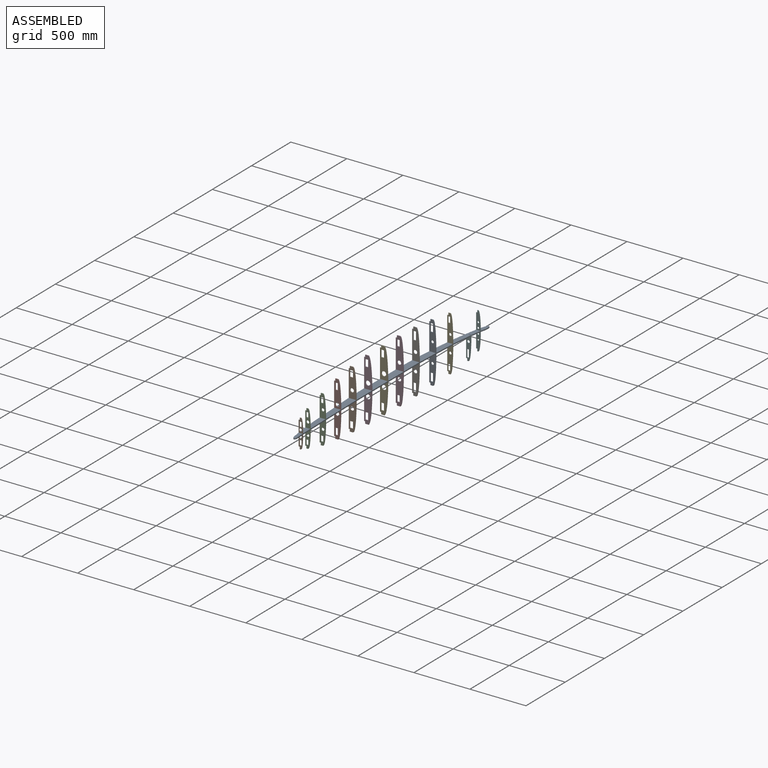
[diagram: assembled view]
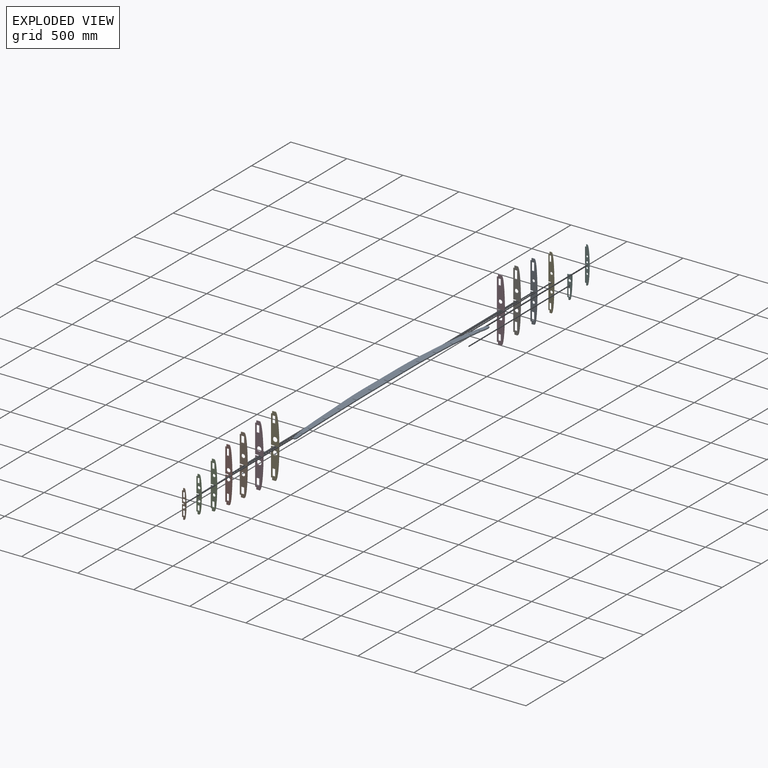
[diagram: exploded view]
GUIDED TOUR — MATED ASSEMBLY (Onshape document 58615a18bdf3891033371130, AutoMate assembly 58615a18bdf3891033371130_2133309ed96235d888a75b1d_295b67834f9d7edd9f971456_default)

This assembly has 14 components, labeled P0..P13 below (a component is one placed occurrence of a part; the same part can appear more than once), held together by 13 mates. A mate is a constraint between two components; its type names the relative motion it leaves free:
  FASTENED — locks the two components together rigidly (no relative motion).
Axis/direction vectors are unit vectors and 'through' points are millimeter coordinates, both in the assembly's world frame.

MATES
  1. FASTENED "Fastened 6": P2 <-> P8, direction (0.000, -1.000, 0.000) through (-668.85, -853.00, 244.33) mm
  2. FASTENED "Fastened 4": P10 <-> P8, direction (0.000, 1.000, 0.000) through (-660.33, -1047.00, 244.33) mm
  3. FASTENED "Fastened 2": P9 <-> P8, direction (0.000, -1.000, 0.000) through (-653.37, -1153.00, 254.33) mm
  4. FASTENED "Fastened 7": P7 <-> P8, direction (0.000, -1.000, 0.000) through (-674.63, -653.00, 244.33) mm
  5. FASTENED "Fastened 10": P1 <-> P8, direction (0.000, -1.000, 0.000) through (-681.65, -453.00, 254.33) mm
  6. FASTENED "Fastened 11": P3 <-> P8, direction (0.000, 1.000, 0.000) through (-682.98, -247.00, 254.33) mm
  7. FASTENED "Fastened 9": P6 <-> P8, direction (0.000, 1.000, 0.000) through (-676.89, 353.00, 244.33) mm
  8. FASTENED "Fastened 13": P4 <-> P8, direction (0.000, 1.000, 0.000) through (-681.33, -47.00, 244.33) mm
  9. FASTENED "Fastened 3": P13 <-> P8, direction (0.000, 1.000, 0.000) through (-625.93, 953.00, 244.33) mm
  10. FASTENED "Fastened 5": P12 <-> P8, direction (0.000, 1.000, 0.000) through (-651.31, 753.00, 244.33) mm
  11. FASTENED "Fastened 1": P5 <-> P8, direction (0.000, 1.000, 0.000) through (-609.81, 1053.00, 254.33) mm
  12. FASTENED "Fastened 8": P0 <-> P8, direction (0.000, -1.000, 0.000) through (-666.50, 547.00, 254.33) mm
  13. FASTENED "Fastened 12": P11 <-> P8, direction (0.000, -1.000, 0.000) through (-680.86, 147.00, 254.33) mm

ASSEMBLY ORDER
  1. P8 — the base component [order verified]
  2. P4 [order verified]
  3. P11 [order verified]
  4. P3 [order verified]
  5. P6 [order verified]
  6. P1 [order verified]
  7. P0 [order verified]
  8. P7 [order verified]
  9. P12 [order verified]
  10. P2 [order verified]
  11. P13 [order verified]
  12. P10 [order verified]
  13. P5 [order verified]
  14. P9 [order verified]
(P1, P12 verified with a relaxed clearance tolerance: the source model stores slight part interference there.)
Order-tag legend:
  [order verified] — this step's position reverses a verified removal order: the component was checked to insert without passing through the ones already placed.

Of the 14 components, 4 carry the full construction recipe — the FeatureScript program that regenerates the part's solid from scratch; the rest are supplied as boundary geometry only.
Because this assembly has more than 12 components, the tour below covers the 12 most significant ones individually (every recipe-attached component first, then the largest by part volume), in assembly order; the remaining 2 are summarized together in a grouped section at the end.
Each toured component is shown spotlighted twice — in the assembled view, then in the exploded view, where a leader line traces a displaced component back to its assembled socket (saturated green if recipe-attached, orange if geometry-only; every other component desaturated gray) — followed by its recipe or geometry summary and the mates that hold it.
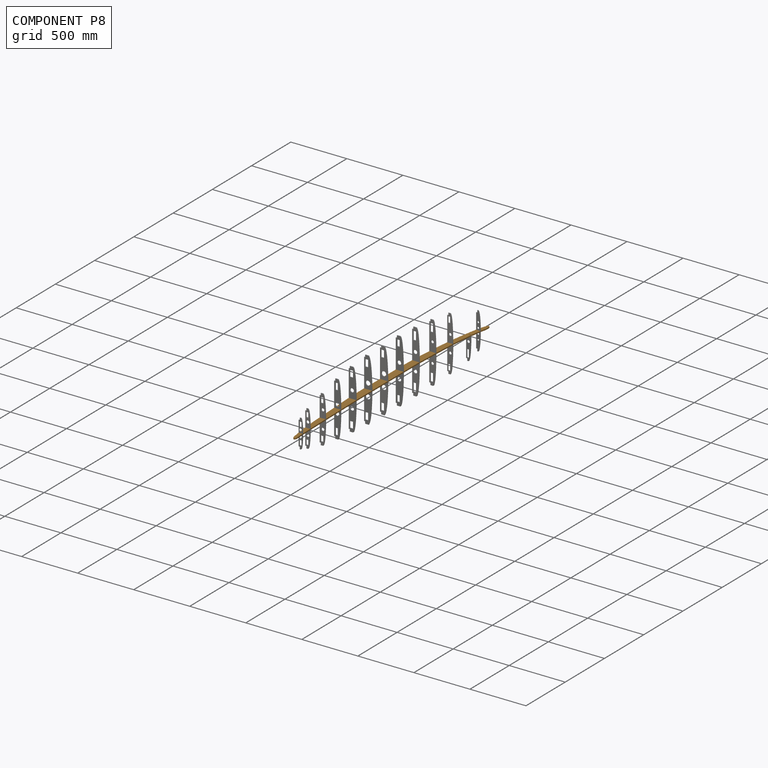
[diagram: component P8 — assembled]
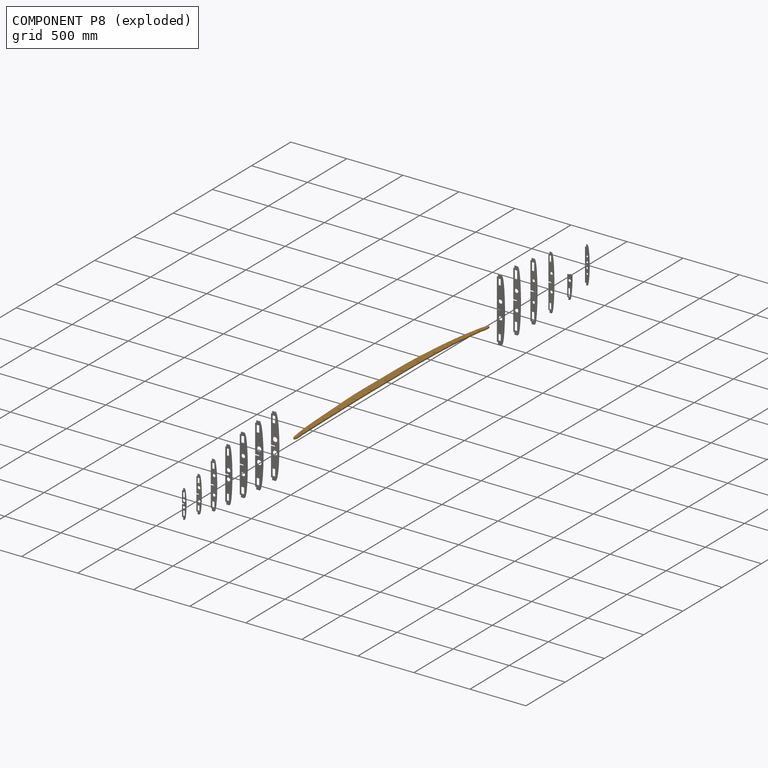
[diagram: component P8 — exploded]
COMPONENT P8 — geometry summary (no construction recipe available for this part):
  bounding box: 2409.0 x 142.4 x 10.0 mm
  B-rep topology: 1 solid, 58 faces, 336 edges
  volume: 1339200 mm^3 (39% of its bounding box)
  symmetry: mirror-symmetric across its z mid-plane
Held by: FASTENED mate "Fastened 6" to P2; FASTENED mate "Fastened 4" to P10; FASTENED mate "Fastened 2" to P9; FASTENED mate "Fastened 7" to P7; FASTENED mate "Fastened 10" to P1; FASTENED mate "Fastened 11" to P3; FASTENED mate "Fastened 9" to P6; FASTENED mate "Fastened 13" to P4; FASTENED mate "Fastened 3" to P13; FASTENED mate "Fastened 5" to P12; FASTENED mate "Fastened 1" to P5; FASTENED mate "Fastened 8" to P0; FASTENED mate "Fastened 12" to P11.
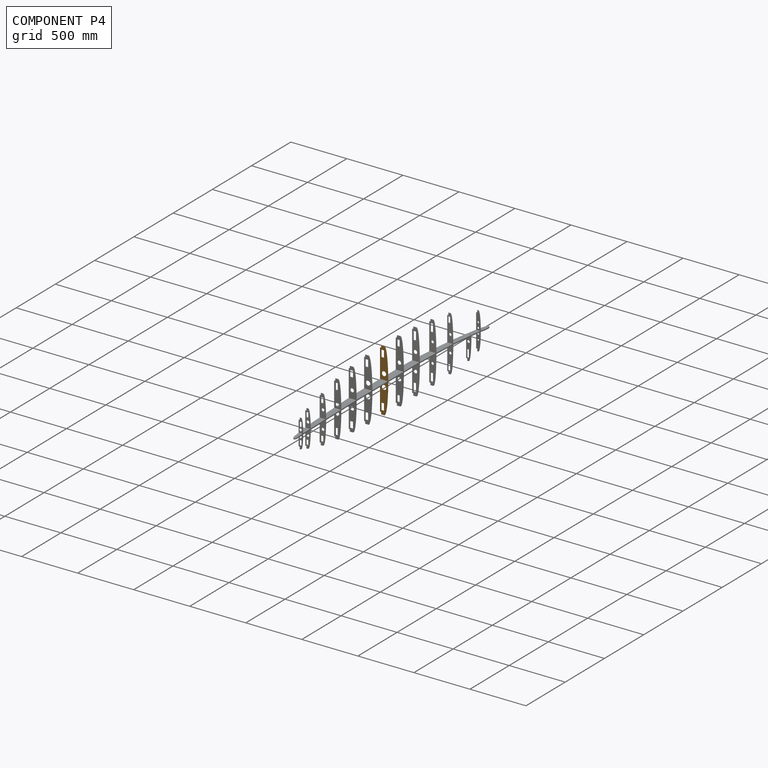
[diagram: component P4 — assembled]
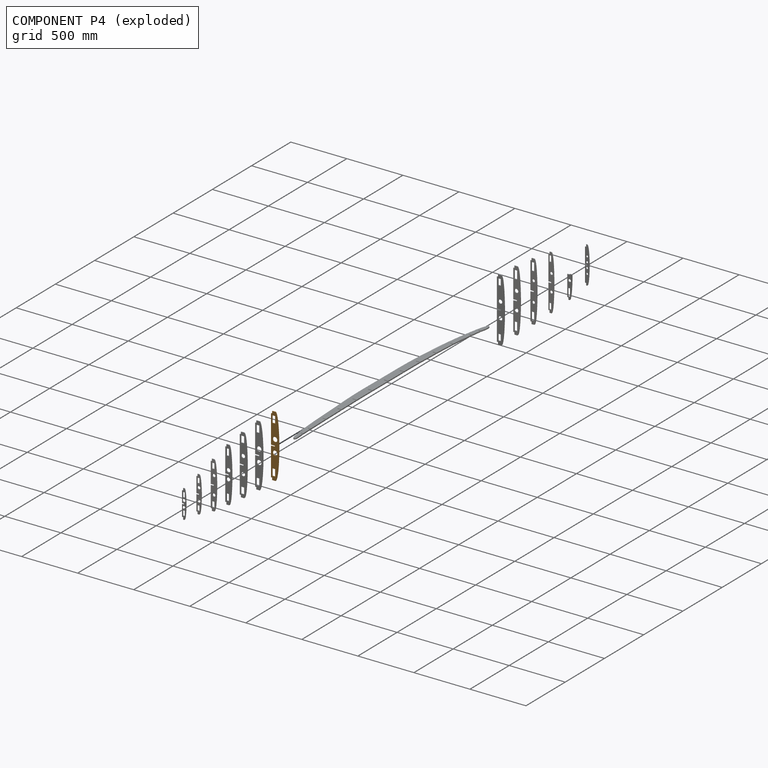
[diagram: component P4 — exploded]
COMPONENT P4 — geometry summary (no construction recipe available for this part):
  bounding box: 556.0 x 70.0 x 6.0 mm
  B-rep topology: 1 solid, 25 faces, 138 edges
  volume: 170056 mm^3 (73% of its bounding box)
  symmetry: 2-fold rotationally symmetric about the x axis; mirror-symmetric across its y mid-plane, z mid-plane
Held by: FASTENED mate "Fastened 13" to P8.
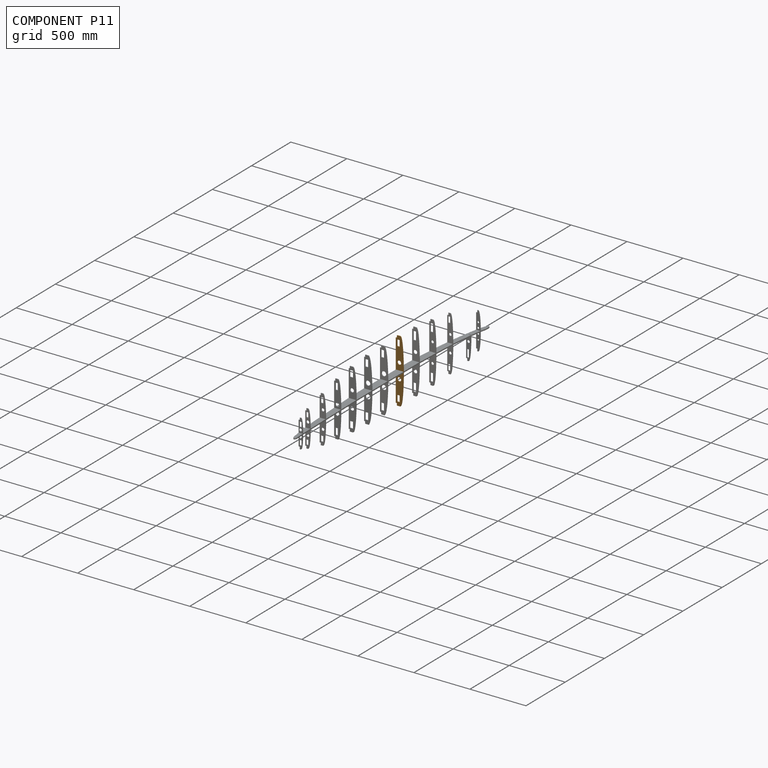
[diagram: component P11 — assembled]
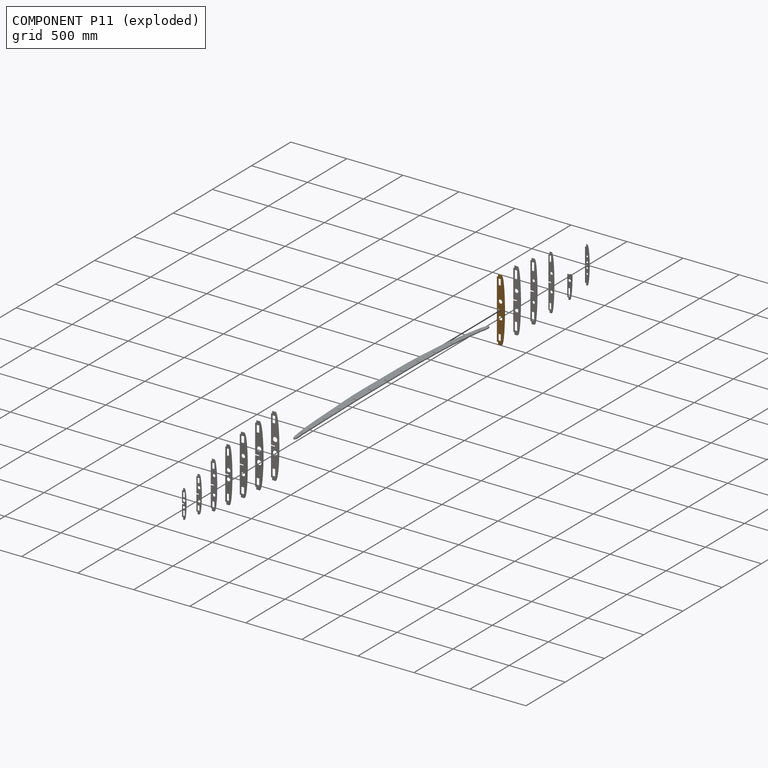
[diagram: component P11 — exploded]
COMPONENT P11 — geometry summary (no construction recipe available for this part):
  bounding box: 566.0 x 68.0 x 6.0 mm
  B-rep topology: 1 solid, 25 faces, 138 edges
  volume: 179502 mm^3 (78% of its bounding box)
  symmetry: 2-fold rotationally symmetric about the x axis; mirror-symmetric across its y mid-plane, z mid-plane
Held by: FASTENED mate "Fastened 12" to P8.
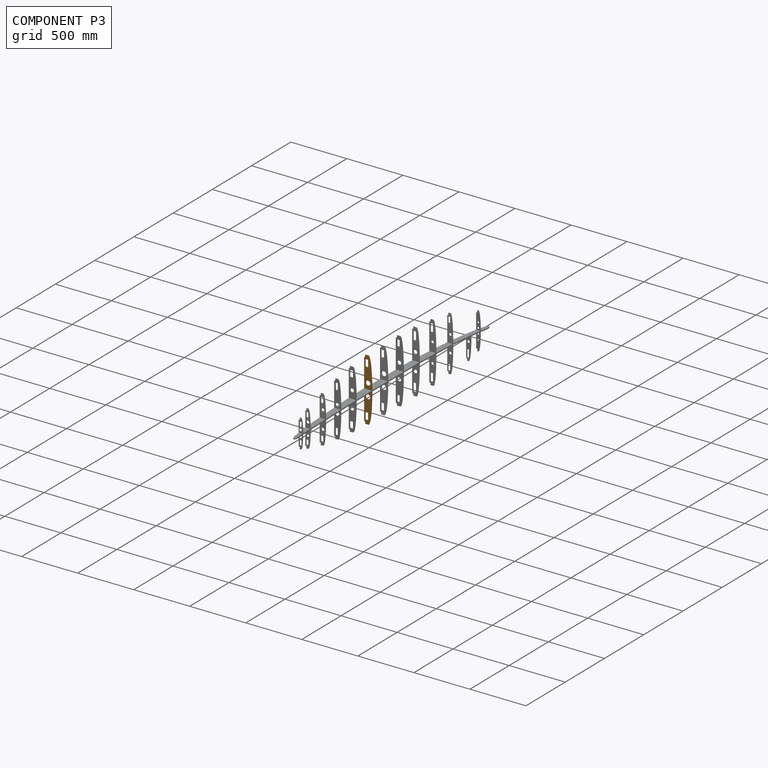
[diagram: component P3 — assembled]
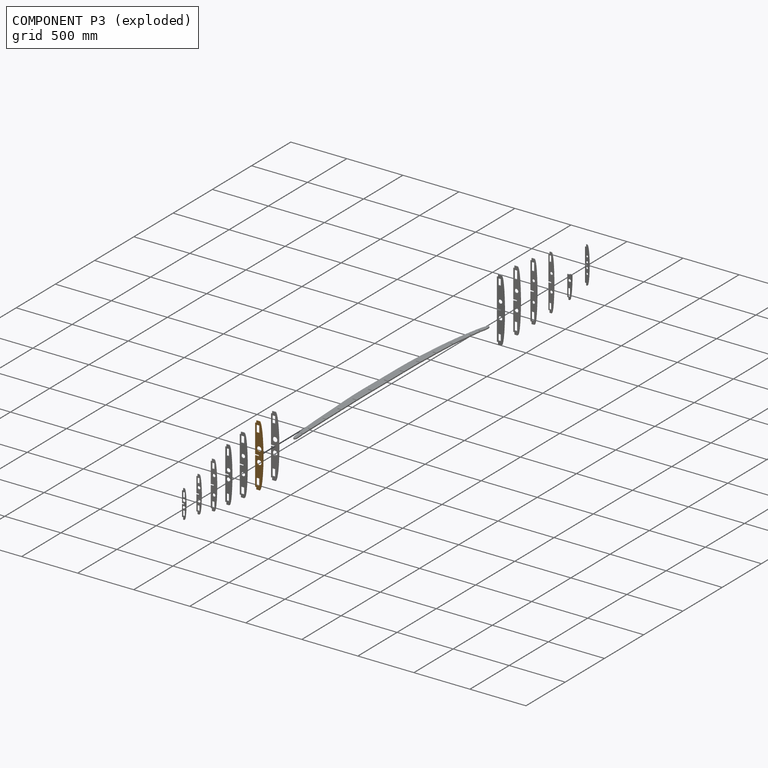
[diagram: component P3 — exploded]
COMPONENT P3 — geometry summary (no construction recipe available for this part):
  bounding box: 556.0 x 70.0 x 6.0 mm
  B-rep topology: 1 solid, 25 faces, 138 edges
  volume: 170056 mm^3 (73% of its bounding box)
  symmetry: 2-fold rotationally symmetric about the x axis; mirror-symmetric across its y mid-plane, z mid-plane
Held by: FASTENED mate "Fastened 11" to P8.
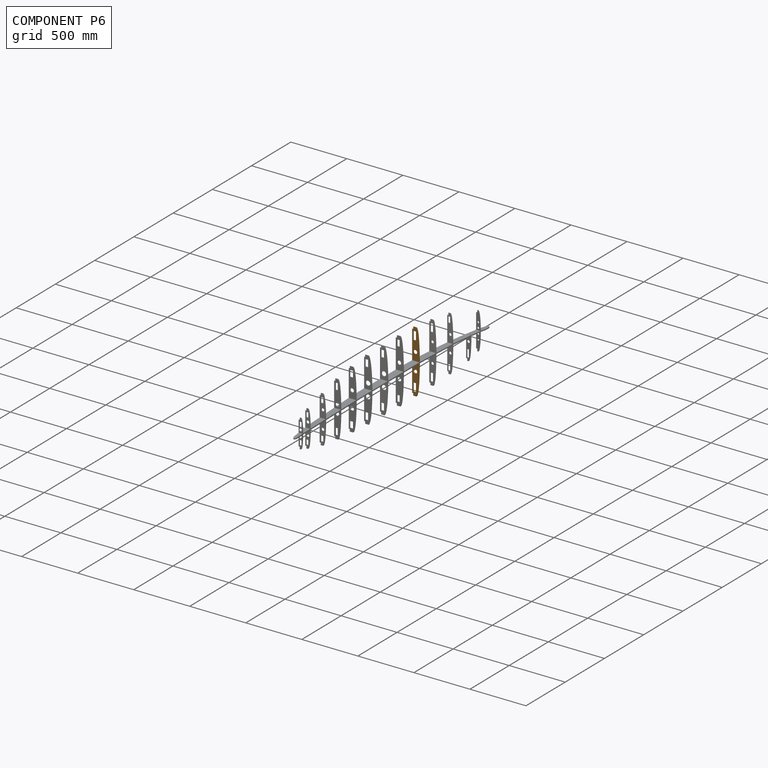
[diagram: component P6 — assembled]
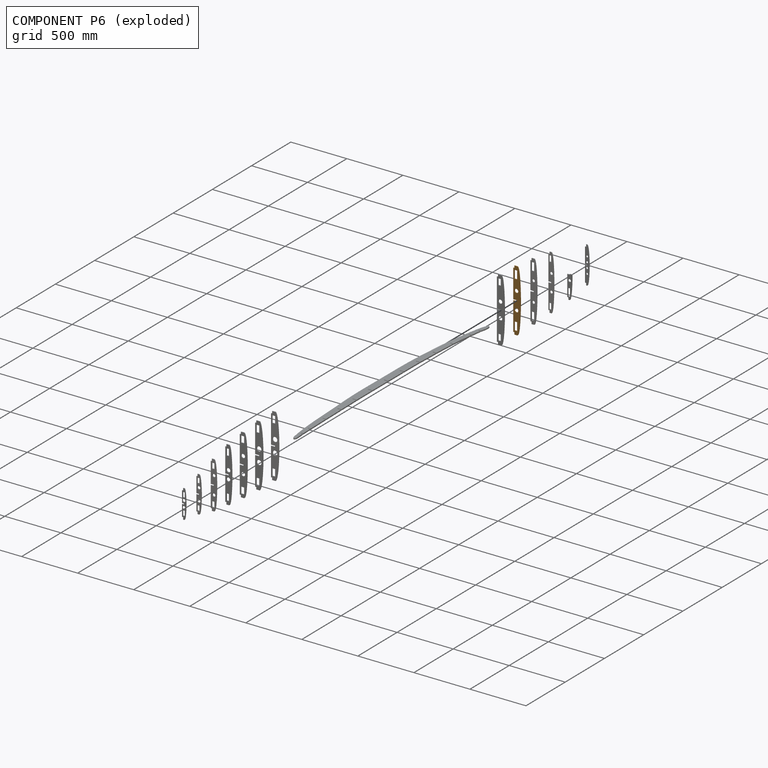
[diagram: component P6 — exploded]
COMPONENT P6 — geometry summary (no construction recipe available for this part):
  bounding box: 556.0 x 65.0 x 6.0 mm
  B-rep topology: 1 solid, 25 faces, 138 edges
  volume: 160410 mm^3 (74% of its bounding box)
  symmetry: 2-fold rotationally symmetric about the x axis; mirror-symmetric across its y mid-plane, z mid-plane
Held by: FASTENED mate "Fastened 9" to P8.
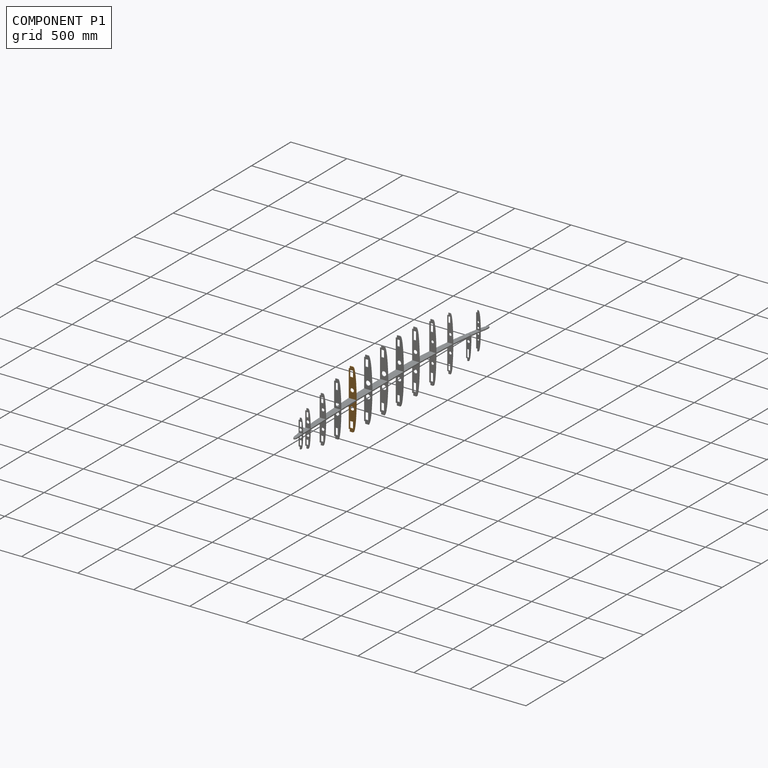
[diagram: component P1 — assembled]
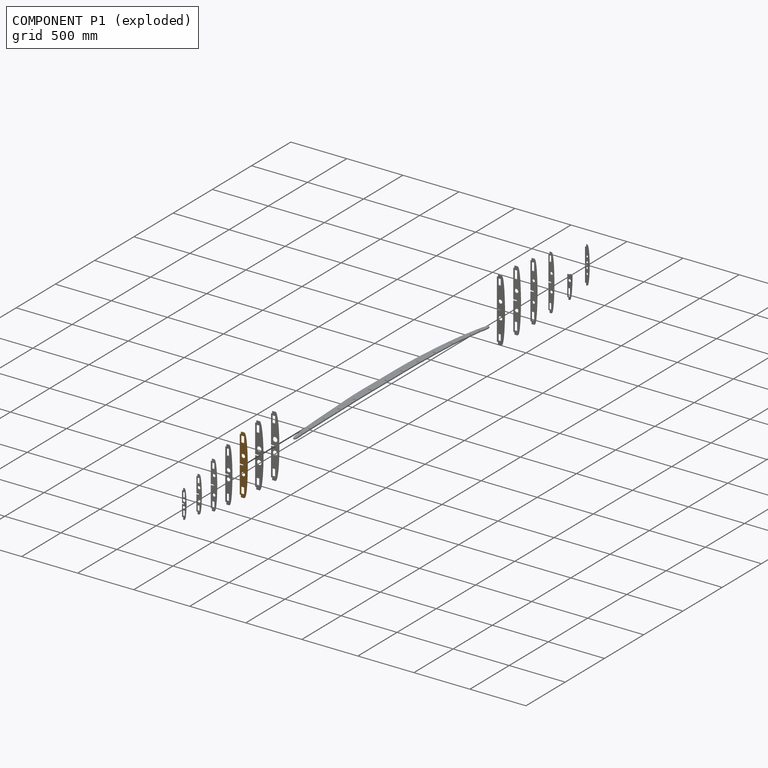
[diagram: component P1 — exploded]
COMPONENT P1 — geometry summary (no construction recipe available for this part):
  bounding box: 528.0 x 67.0 x 6.0 mm
  B-rep topology: 1 solid, 25 faces, 138 edges
  volume: 158612 mm^3 (75% of its bounding box)
  symmetry: 2-fold rotationally symmetric about the x axis; mirror-symmetric across its y mid-plane, z mid-plane
Held by: FASTENED mate "Fastened 10" to P8.
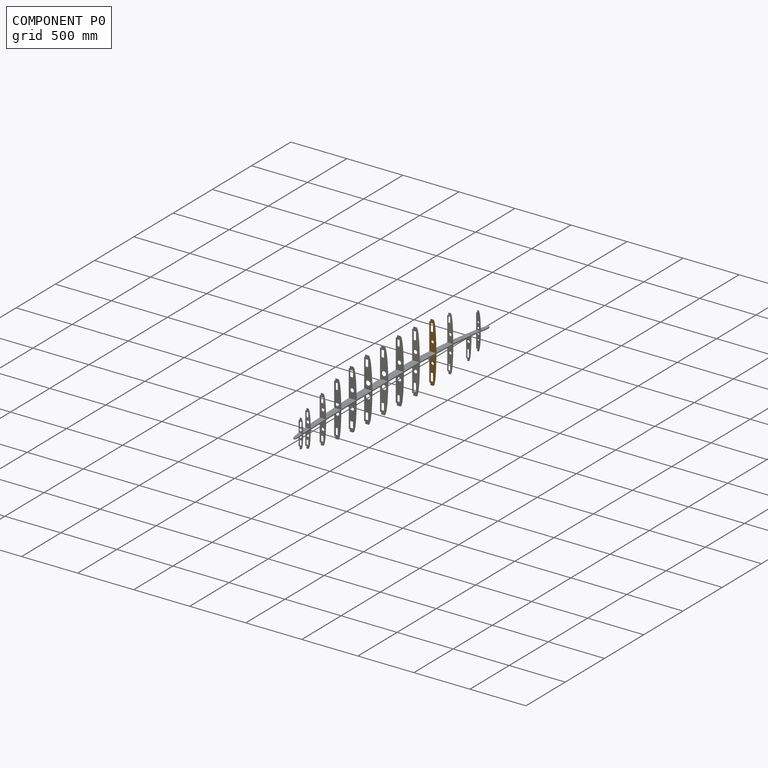
[diagram: component P0 — assembled]
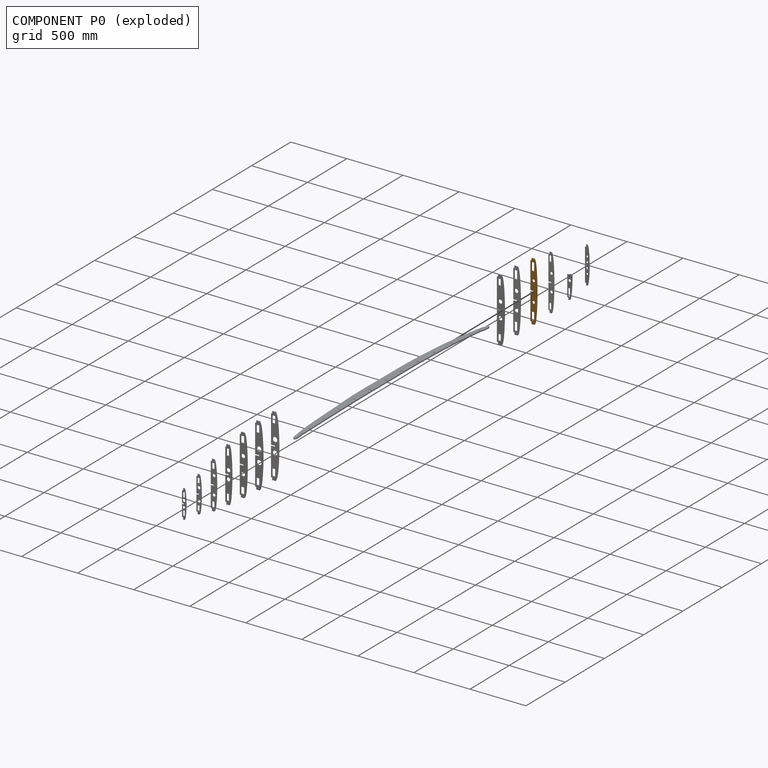
[diagram: component P0 — exploded]
COMPONENT P0 — geometry summary (no construction recipe available for this part):
  bounding box: 532.0 x 59.0 x 6.0 mm
  B-rep topology: 1 solid, 25 faces, 138 edges
  volume: 142225 mm^3 (76% of its bounding box)
  symmetry: 2-fold rotationally symmetric about the x axis; mirror-symmetric across its y mid-plane, z mid-plane
Held by: FASTENED mate "Fastened 8" to P8.
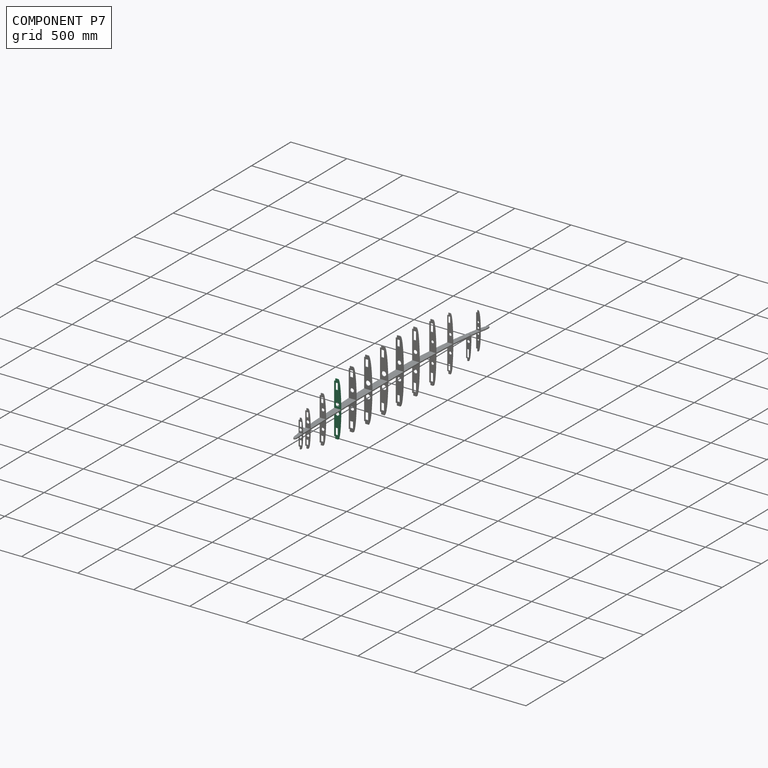
[diagram: component P7 — assembled]
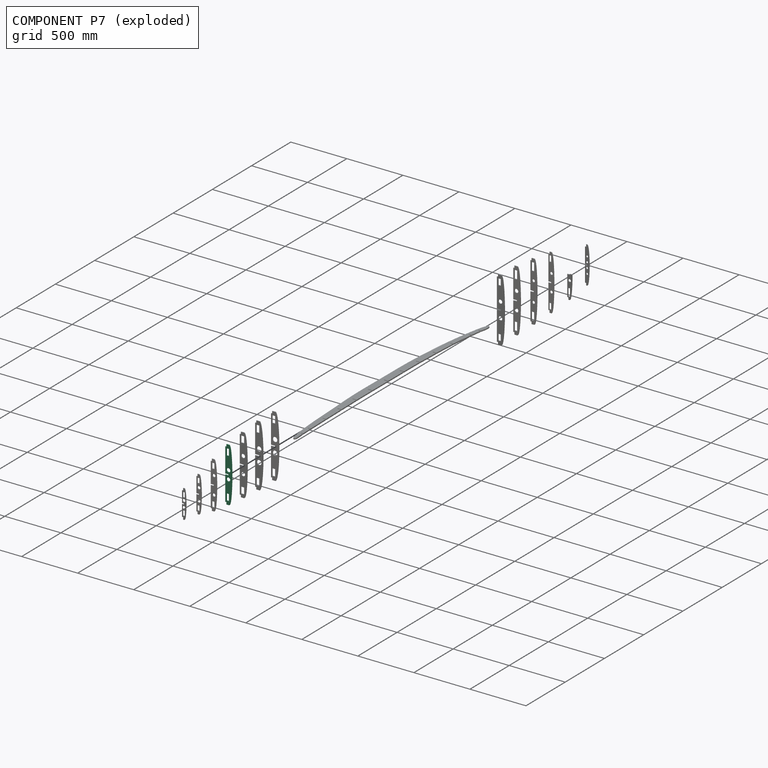
[diagram: component P7 — exploded]
COMPONENT P7 — recipe-attached (CADFS 00405793, mesh-verified: the recipe's output STEP matches this component's geometry to below the mesh-comparison resolution (tessellation chordal tolerance ~0.734 mm)).
Held by: FASTENED mate "Fastened 7" to P8.
Construction recipe (FeatureScript — the CAD program that rebuilds this solid; sketch coordinates are in the units given by the * unit suffixes, e.g. mm):

FeatureScript 1511;
import(path : "onshape/std/geometry.fs", version : "1511.0");
import(path : "onshape/std/common.fs", version : "1511.0");
const mm = millimeter;
const VERTEX = EntityType.VERTEX;
const EDGE = EntityType.EDGE;
const FACE = EntityType.FACE;
const BODY = EntityType.BODY;
function v(x, y){return vector(x, y);}
function OD(order){return orderDisambiguation(order);}
function OSD(set){return originalSetDisambiguation(set);}
function TD(topology){return topologyDisambiguation(topology);}
function TDD(query){return trueDependencyDisambiguation(query);}
function sQuery(a, b, c) {return sketchEntityQuery(a, b, c);}

annotation { "Feature Type Name" : "Feature", "Feature Type Description" : "" }
export const myFeature = defineFeature(function(context is Context, id is Id, definition is map)
    precondition{}
    {
        {
            var Q0;
            Q0=qCreatedBy(makeId("Front.planeOp"),FACE);
            var sketch = newSketch(context, id + "F0", { "sketchPlane" : qUnion([Q0])});
            skLineSegment(sketch, "E0.top", {"start": v(203.9, 162.56) * mm, "end": v(154.46, 162.56) * mm});
            skLineSegment(sketch, "E1", {"start": v(204.46, -80.44) * mm, "end": v(144.46, -80.44) * mm});
            skLineSegment(sketch, "E2", {"start": v(203.9, 162.56) * mm, "end": v(203.9, -81.33) * mm});
            skLineSegment(sketch, "E3.bottom", {"start": v(176.66, 130.58) * mm, "end": v(155.5, 130.58) * mm});
            skLineSegment(sketch, "E3.top", {"start": v(176.66, 72.1) * mm, "end": v(155.5, 72.1) * mm});
            skLineSegment(sketch, "E3.left", {"start": v(176.66, 130.58) * mm, "end": v(176.66, 72.1) * mm});
            skLineSegment(sketch, "E3.right", {"start": v(155.5, 130.58) * mm, "end": v(155.5, 72.1) * mm});
            skCircle(sketch, "E4", {"center": v(172.37, -42.52) * mm, "radius": 16.93 * mm});
            skLineSegment(sketch, "E5", {"start": v(203.9, -80.44) * mm, "end": v(204.46, -80.44) * mm});
            skFitSpline(sketch, "E6", {"points": [v(178.3, 162.56) * mm, v(203.9, -80.44) * mm], "startDerivative": vector(76.9, -21.6) * mm, "endDerivative": vector(-0.1, 2.67) * mm});
            skLineSegment(sketch, "E7.MirrorCS", {"start": v(176.66, -291.45) * mm, "end": v(176.66, -232.97) * mm});
            skCircle(sketch, "E8.MirrorC", {"center": v(172.37, -118.36) * mm, "radius": 16.93 * mm});
            skLineSegment(sketch, "E9.MirrorCS", {"start": v(176.66, -291.45) * mm, "end": v(155.5, -291.45) * mm});
            skLineSegment(sketch, "E10.MirrorCS", {"start": v(155.5, -291.45) * mm, "end": v(155.5, -232.97) * mm});
            skLineSegment(sketch, "E11.MirrorCS", {"start": v(176.66, -232.97) * mm, "end": v(155.5, -232.97) * mm});
            skLineSegment(sketch, "E12.MirrorCS", {"start": v(203.9, -323.44) * mm, "end": v(203.9, -79.55) * mm});
            skFitSpline(sketch, "E13.MirrorCS", {"points": [v(178.3, -323.44) * mm, v(203.9, -80.44) * mm], "startDerivative": vector(76.9, 21.6) * mm, "endDerivative": vector(-0.1, -2.67) * mm});
            skLineSegment(sketch, "E14.MirrorCS", {"start": v(203.9, -323.44) * mm, "end": v(154.46, -323.44) * mm});
            skLineSegment(sketch, "E15", {"start": v(174.46, -80.44) * mm, "end": v(174.46, -75.44) * mm});
            skLineSegment(sketch, "E16", {"start": v(174.46, -80.44) * mm, "end": v(174.46, -85.44) * mm});
            skLineSegment(sketch, "E17", {"start": v(174.46, -75.44) * mm, "end": v(144.46, -75.44) * mm});
            skLineSegment(sketch, "E18", {"start": v(174.46, -85.44) * mm, "end": v(144.46, -85.44) * mm});
            skLineSegment(sketch, "E19", {"start": v(154.46, 162.56) * mm, "end": v(154.46, 142.56) * mm});
            skLineSegment(sketch, "E20", {"start": v(154.46, 142.56) * mm, "end": v(144.46, 142.56) * mm});
            skLineSegment(sketch, "E21", {"start": v(154.46, 162.56) * mm, "end": v(178.46, 162.56) * mm});
            skLineSegment(sketch, "E22", {"start": v(144.46, 142.56) * mm, "end": v(144.46, -80.44) * mm});
            skLineSegment(sketch, "E23.MirrorCS", {"start": v(154.46, -323.44) * mm, "end": v(154.46, -303.44) * mm});
            skLineSegment(sketch, "E24.MirrorCS", {"start": v(154.46, -303.44) * mm, "end": v(144.46, -303.44) * mm});
            skLineSegment(sketch, "E25", {"start": v(144.46, -303.44) * mm, "end": v(144.46, -80.44) * mm});
            skLineSegment(sketch, "E26", {"start": v(154.46, -323.44) * mm, "end": v(178.46, -323.44) * mm});
            skSolve(sketch);
        }
        {
            var Q0;
            Q0=makeQuery(id+"F0.imprint","IMPRINT",FACE,{"disambiguationData":[TD([[makeQuery(id+"F0.imprint","IMPRINT",EDGE,{"derivedFrom":sQuery(id+"F0.wireOp",EDGE,"E7.MirrorCS")}),-1.0]])]});
            var Q1;
            Q1=makeQuery(id+"F0.imprint","IMPRINT",FACE,{"disambiguationData":[TD([[makeQuery(id+"F0.imprint","IMPRINT",EDGE,{"derivedFrom":sQuery(id+"F0.wireOp",EDGE,"E3.bottom")}),-1.0]])]});
            extrude(context, id + "F1", {"entities" : qUnion([Q0, Q1]), "depth" : 6 * mm});
        }
    });
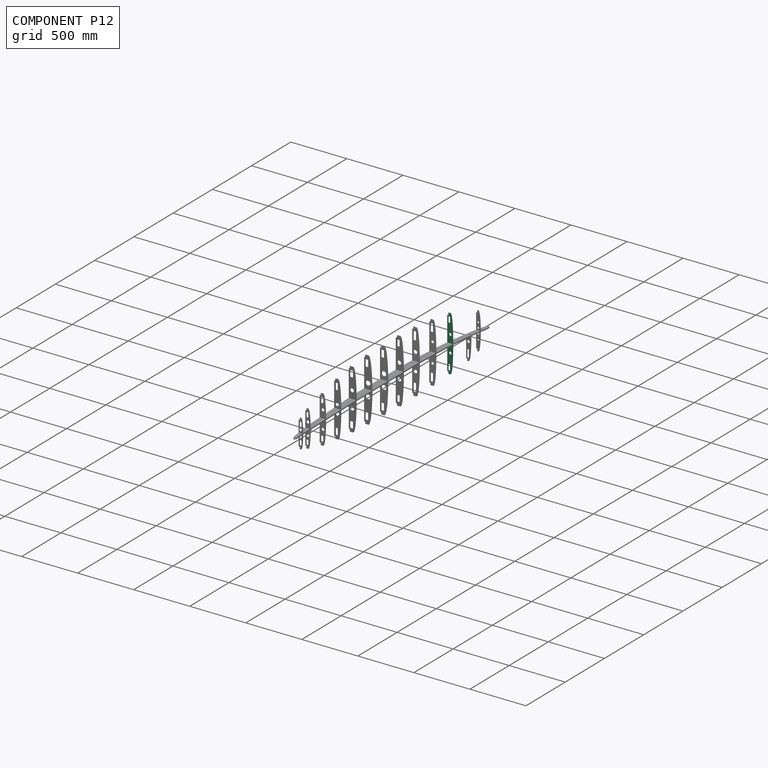
[diagram: component P12 — assembled]
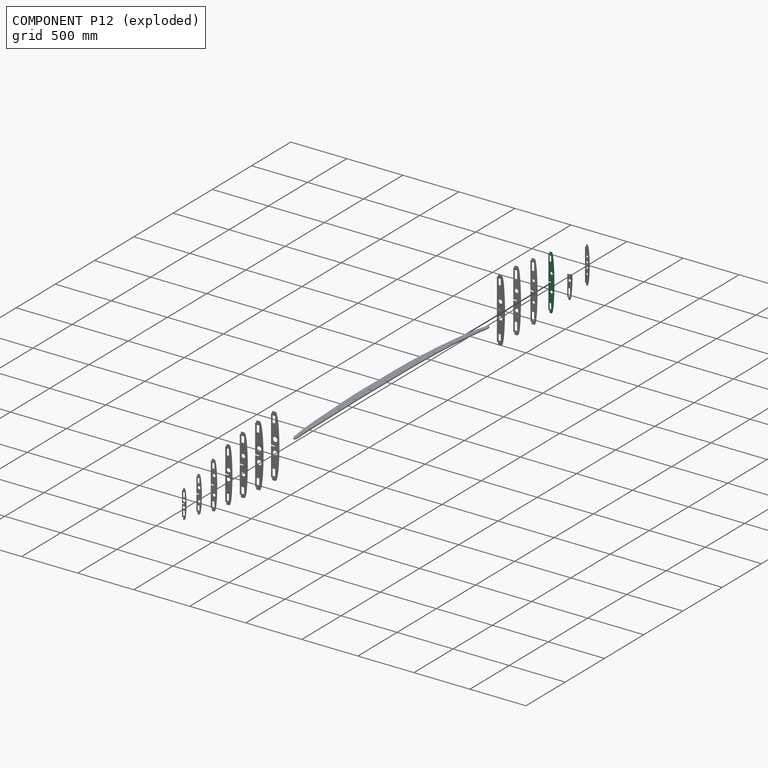
[diagram: component P12 — exploded]
COMPONENT P12 — recipe-attached (CADFS 00405786, mesh-verified: the recipe's output STEP matches this component's geometry to below the mesh-comparison resolution (tessellation chordal tolerance ~0.742 mm)).
Held by: FASTENED mate "Fastened 5" to P8.
Construction recipe (FeatureScript — the CAD program that rebuilds this solid; sketch coordinates are in the units given by the * unit suffixes, e.g. mm):

FeatureScript 1511;
import(path : "onshape/std/geometry.fs", version : "1511.0");
import(path : "onshape/std/common.fs", version : "1511.0");
const mm = millimeter;
const VERTEX = EntityType.VERTEX;
const EDGE = EntityType.EDGE;
const FACE = EntityType.FACE;
const BODY = EntityType.BODY;
function v(x, y){return vector(x, y);}
function OD(order){return orderDisambiguation(order);}
function OSD(set){return originalSetDisambiguation(set);}
function TD(topology){return topologyDisambiguation(topology);}
function TDD(query){return trueDependencyDisambiguation(query);}
function sQuery(a, b, c) {return sketchEntityQuery(a, b, c);}

annotation { "Feature Type Name" : "Feature", "Feature Type Description" : "" }
export const myFeature = defineFeature(function(context is Context, id is Id, definition is map)
    precondition{}
    {
        {
            var Q0;
            Q0=qCreatedBy(makeId("Front.planeOp"),FACE);
            var sketch = newSketch(context, id + "F0", { "sketchPlane" : qUnion([Q0])});
            skFitSpline(sketch, "E0", {"points": [v(192.75, 203.85) * mm, v(215.25, -42.15) * mm], "startDerivative": vector(67.6, -22.2) * mm, "endDerivative": vector(-0.1, -5.55) * mm});
            skLineSegment(sketch, "E1", {"start": v(215.25, -42.15) * mm, "end": v(165.25, -42.15) * mm});
            skLineSegment(sketch, "E2", {"start": v(215.28, 203.85) * mm, "end": v(215.28, -40.3) * mm});
            skLineSegment(sketch, "E3.bottom", {"start": v(190.73, 175.44) * mm, "end": v(172.16, 175.44) * mm});
            skLineSegment(sketch, "E3.top", {"start": v(190.73, 123.6) * mm, "end": v(172.16, 123.6) * mm});
            skLineSegment(sketch, "E3.left", {"start": v(190.73, 175.44) * mm, "end": v(190.73, 123.6) * mm});
            skLineSegment(sketch, "E3.right", {"start": v(172.16, 175.44) * mm, "end": v(172.16, 123.6) * mm});
            skCircle(sketch, "E4", {"center": v(191.53, 32.8) * mm, "radius": 11.87 * mm});
            skLineSegment(sketch, "E5.MirrorCS", {"start": v(190.73, -207.9) * mm, "end": v(172.16, -207.9) * mm});
            skLineSegment(sketch, "E6.MirrorCS", {"start": v(172.16, -259.74) * mm, "end": v(172.16, -207.9) * mm});
            skFitSpline(sketch, "E7.MirrorCS", {"points": [v(192.75, -288.15) * mm, v(215.25, -42.15) * mm], "startDerivative": vector(67.6, 22.2) * mm, "endDerivative": vector(-0.1, 5.55) * mm});
            skLineSegment(sketch, "E8.MirrorCS", {"start": v(215.28, -288.15) * mm, "end": v(175.25, -288.15) * mm});
            skLineSegment(sketch, "E9.MirrorCS", {"start": v(215.28, -288.15) * mm, "end": v(215.28, -44) * mm});
            skLineSegment(sketch, "E10.MirrorCS", {"start": v(190.73, -259.74) * mm, "end": v(172.16, -259.74) * mm});
            skLineSegment(sketch, "E11.MirrorCS", {"start": v(190.73, -259.74) * mm, "end": v(190.73, -207.9) * mm});
            skCircle(sketch, "E12.MirrorC", {"center": v(191.53, -117.1) * mm, "radius": 11.87 * mm});
            skLineSegment(sketch, "E13", {"start": v(190.25, -42.15) * mm, "end": v(190.25, -47.15) * mm});
            skLineSegment(sketch, "E14", {"start": v(190.25, -42.15) * mm, "end": v(190.25, -37.15) * mm});
            skLineSegment(sketch, "E15", {"start": v(190.25, -37.15) * mm, "end": v(165.25, -37.15) * mm});
            skLineSegment(sketch, "E16", {"start": v(190.25, -47.15) * mm, "end": v(165.25, -47.15) * mm});
            skLineSegment(sketch, "E17", {"start": v(175.25, 203.85) * mm, "end": v(175.25, 183.85) * mm});
            skLineSegment(sketch, "E18", {"start": v(175.25, 183.85) * mm, "end": v(165.25, 183.85) * mm});
            skLineSegment(sketch, "E19", {"start": v(175.25, 203.85) * mm, "end": v(192.75, 203.85) * mm});
            skLineSegment(sketch, "E20", {"start": v(165.25, 183.85) * mm, "end": v(165.25, -42.15) * mm});
            skLineSegment(sketch, "E21", {"start": v(192.75, 203.85) * mm, "end": v(215.28, 203.85) * mm});
            skLineSegment(sketch, "E22.MirrorCS", {"start": v(175.25, -288.15) * mm, "end": v(175.25, -268.15) * mm});
            skLineSegment(sketch, "E23.MirrorCS", {"start": v(175.25, -268.15) * mm, "end": v(165.25, -268.15) * mm});
            skLineSegment(sketch, "E24", {"start": v(175.25, -288.15) * mm, "end": v(175.25, -288.15) * mm});
            skLineSegment(sketch, "E25", {"start": v(165.25, -268.15) * mm, "end": v(165.25, -42.15) * mm});
            skLineSegment(sketch, "E26", {"start": v(165.25, -268.15) * mm, "end": v(165.25, -268.15) * mm});
            skSolve(sketch);
        }
        {
            var Q0;
            Q0=makeQuery(id+"F0.imprint","IMPRINT",FACE,{"disambiguationData":[TD([[makeQuery(id+"F0.imprint","IMPRINT",EDGE,{"derivedFrom":sQuery(id+"F0.wireOp",EDGE,"7156f876-30db-4834-be3f-2c649fc2f715")}),-1.0]])]});
            var Q1;
            Q1=makeQuery(id+"F0.imprint","IMPRINT",FACE,{"disambiguationData":[TD([[makeQuery(id+"F0.imprint","IMPRINT",EDGE,{"derivedFrom":sQuery(id+"F0.wireOp",EDGE,"E5.MirrorCS")}),-1.0]])]});
            var Q2;
            {var subQ0=sQuery(id+"F0.wireOp",EDGE,"E0");Q2=makeQuery(id+"F0.imprint","IMPRINT",FACE,{"disambiguationData":[TD([[makeQuery(id+"F0.imprint","IMPRINT",EDGE,{"derivedFrom":subQ0}),-1.0]])]});}
            extrude(context, id + "F1", {"entities" : qUnion([Q0, Q1, Q2]), "depth" : 6 * mm});
        }
    });
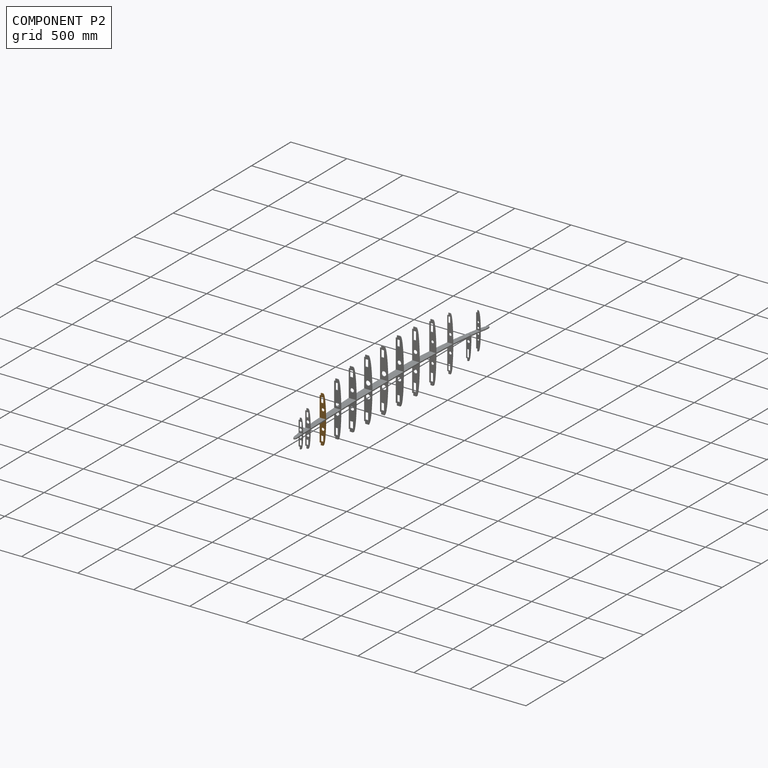
[diagram: component P2 — assembled]
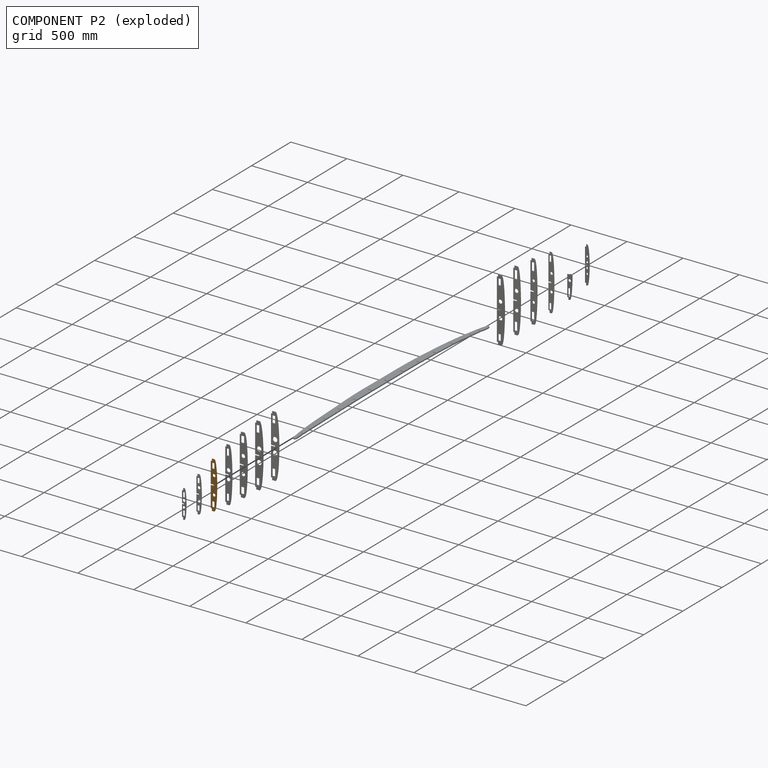
[diagram: component P2 — exploded]
COMPONENT P2 — geometry summary (no construction recipe available for this part):
  bounding box: 420.0 x 54.1 x 6.0 mm
  B-rep topology: 1 solid, 26 faces, 144 edges
  volume: 100038 mm^3 (73% of its bounding box)
  symmetry: 2-fold rotationally symmetric about the x axis; mirror-symmetric across its y mid-plane, z mid-plane
Held by: FASTENED mate "Fastened 6" to P8.
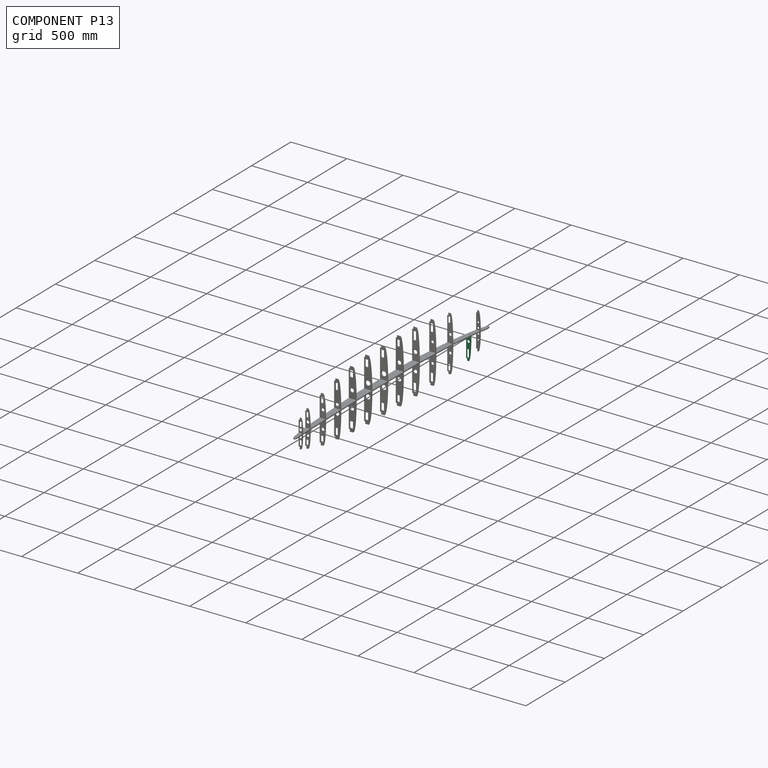
[diagram: component P13 — assembled]
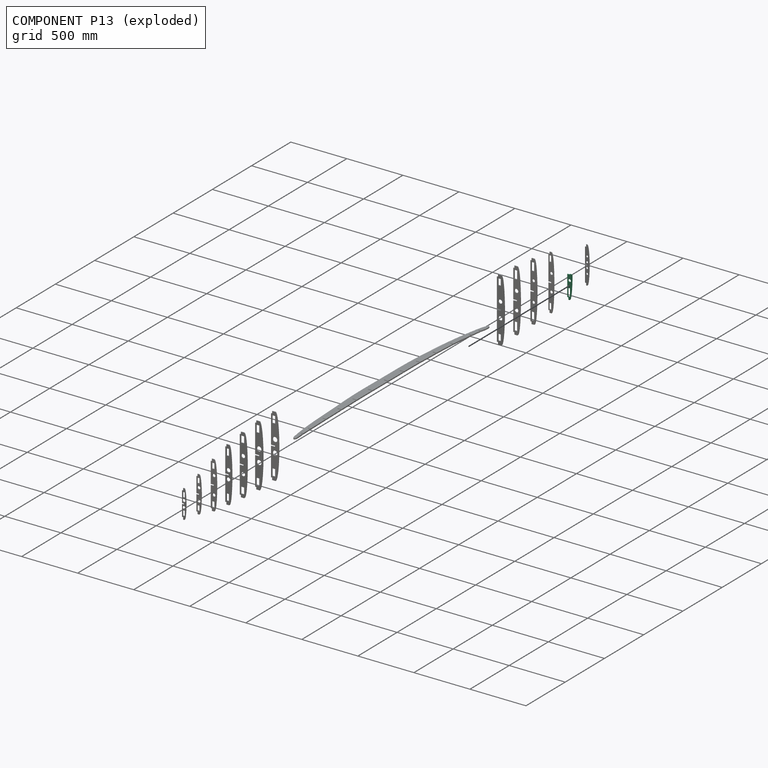
[diagram: component P13 — exploded]
COMPONENT P13 — recipe-attached (CADFS 00405785, mesh-verified: the recipe's output STEP matches this component's geometry to below the mesh-comparison resolution (tessellation chordal tolerance ~0.322 mm)).
Held by: FASTENED mate "Fastened 3" to P8.
Construction recipe (FeatureScript — the CAD program that rebuilds this solid; sketch coordinates are in the units given by the * unit suffixes, e.g. mm):

FeatureScript 1511;
import(path : "onshape/std/geometry.fs", version : "1511.0");
import(path : "onshape/std/common.fs", version : "1511.0");
const mm = millimeter;
const VERTEX = EntityType.VERTEX;
const EDGE = EntityType.EDGE;
const FACE = EntityType.FACE;
const BODY = EntityType.BODY;
function v(x, y){return vector(x, y);}
function OD(order){return orderDisambiguation(order);}
function OSD(set){return originalSetDisambiguation(set);}
function TD(topology){return topologyDisambiguation(topology);}
function TDD(query){return trueDependencyDisambiguation(query);}
function sQuery(a, b, c) {return sketchEntityQuery(a, b, c);}

annotation { "Feature Type Name" : "Feature", "Feature Type Description" : "" }
export const myFeature = defineFeature(function(context is Context, id is Id, definition is map)
    precondition{}
    {
        {
            var Q0;
            Q0=qCreatedBy(makeId("Front.planeOp"),FACE);
            var sketch = newSketch(context, id + "F0", { "sketchPlane" : qUnion([Q0])});
            skFitSpline(sketch, "E0", {"points": [v(155.76, 291.87) * mm, v(178.76, 81.87) * mm], "startDerivative": vector(69.02, -18) * mm, "endDerivative": vector(-0.02, -2.14) * mm});
            skLineSegment(sketch, "E1", {"start": v(178.76, 81.87) * mm, "end": v(135.76, 81.87) * mm});
            skLineSegment(sketch, "E2", {"start": v(178.77, 291.87) * mm, "end": v(178.77, 82.58) * mm});
            skLineSegment(sketch, "E3.bottom", {"start": v(160.4, 264.34) * mm, "end": v(142.6, 264.34) * mm});
            skLineSegment(sketch, "E3.top", {"start": v(160.4, 196.62) * mm, "end": v(142.6, 196.62) * mm});
            skLineSegment(sketch, "E3.left", {"start": v(160.4, 264.34) * mm, "end": v(160.4, 196.62) * mm});
            skLineSegment(sketch, "E3.right", {"start": v(142.6, 264.34) * mm, "end": v(142.6, 196.62) * mm});
            skCircle(sketch, "E4", {"center": v(155.74, 134.46) * mm, "radius": 11.87 * mm});
            skLineSegment(sketch, "E5.MirrorCS", {"start": v(160.4, -100.6) * mm, "end": v(142.6, -100.6) * mm});
            skFitSpline(sketch, "E6.MirrorCS", {"points": [v(155.76, -128.13) * mm, v(178.76, 81.87) * mm], "startDerivative": vector(69.02, 18) * mm, "endDerivative": vector(-0.02, 2.14) * mm});
            skLineSegment(sketch, "E7.MirrorCS", {"start": v(142.6, -100.6) * mm, "end": v(142.6, -32.88) * mm});
            skLineSegment(sketch, "E8.MirrorCS", {"start": v(160.4, -100.6) * mm, "end": v(160.4, -32.88) * mm});
            skLineSegment(sketch, "E9.MirrorCS", {"start": v(178.77, -128.13) * mm, "end": v(178.77, 81.16) * mm});
            skLineSegment(sketch, "E10.MirrorCS", {"start": v(160.4, -32.88) * mm, "end": v(142.6, -32.88) * mm});
            skCircle(sketch, "E11.MirrorC", {"center": v(155.74, 29.27) * mm, "radius": 11.87 * mm});
            skLineSegment(sketch, "E12", {"start": v(157.26, 81.87) * mm, "end": v(157.26, 86.87) * mm});
            skLineSegment(sketch, "E13", {"start": v(157.26, 81.87) * mm, "end": v(157.26, 76.87) * mm});
            skLineSegment(sketch, "E14", {"start": v(157.26, 86.87) * mm, "end": v(135.76, 86.87) * mm});
            skLineSegment(sketch, "E15", {"start": v(157.26, 76.87) * mm, "end": v(135.76, 76.87) * mm});
            skLineSegment(sketch, "E16", {"start": v(145.76, 291.87) * mm, "end": v(145.76, 271.87) * mm});
            skLineSegment(sketch, "E17", {"start": v(145.76, 271.87) * mm, "end": v(135.76, 271.87) * mm});
            skLineSegment(sketch, "E18", {"start": v(145.76, 291.87) * mm, "end": v(155.76, 291.87) * mm});
            skLineSegment(sketch, "E19", {"start": v(135.76, 271.87) * mm, "end": v(135.76, 81.87) * mm});
            skLineSegment(sketch, "E20", {"start": v(155.76, 291.87) * mm, "end": v(178.77, 291.87) * mm});
            skLineSegment(sketch, "E21.MirrorCS", {"start": v(145.76, -128.13) * mm, "end": v(145.76, -108.13) * mm});
            skLineSegment(sketch, "E22.MirrorCS", {"start": v(145.76, -108.13) * mm, "end": v(135.76, -108.13) * mm});
            skLineSegment(sketch, "E23", {"start": v(145.76, -128.13) * mm, "end": v(155.76, -128.13) * mm});
            skLineSegment(sketch, "E24", {"start": v(135.76, -108.13) * mm, "end": v(135.76, 81.87) * mm});
            skLineSegment(sketch, "E25", {"start": v(178.77, -128.13) * mm, "end": v(155.76, -128.13) * mm});
            skSolve(sketch);
        }
        {
            var Q0;
            Q0=makeQuery(id+"F0.imprint","IMPRINT",FACE,{"disambiguationData":[TD([[makeQuery(id+"F0.imprint","IMPRINT",EDGE,{"derivedFrom":sQuery(id+"F0.wireOp",EDGE,"85cddfad-3993-4289-a329-3e50ecc5d13c")}),-1.0]])]});
            var Q1;
            Q1=makeQuery(id+"F0.imprint","IMPRINT",FACE,{"disambiguationData":[TD([[makeQuery(id+"F0.imprint","IMPRINT",EDGE,{"derivedFrom":sQuery(id+"F0.wireOp",EDGE,"E5.MirrorCS")}),1.0]])]});
            extrude(context, id + "F1", {"entities" : qUnion([Q0, Q1]), "depth" : 6 * mm});
        }
    });
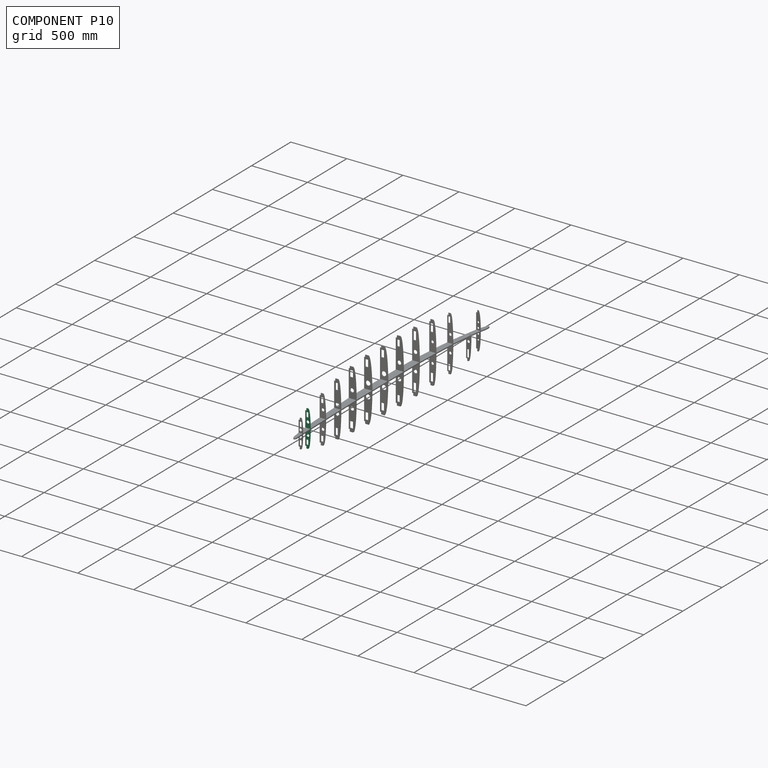
[diagram: component P10 — assembled]
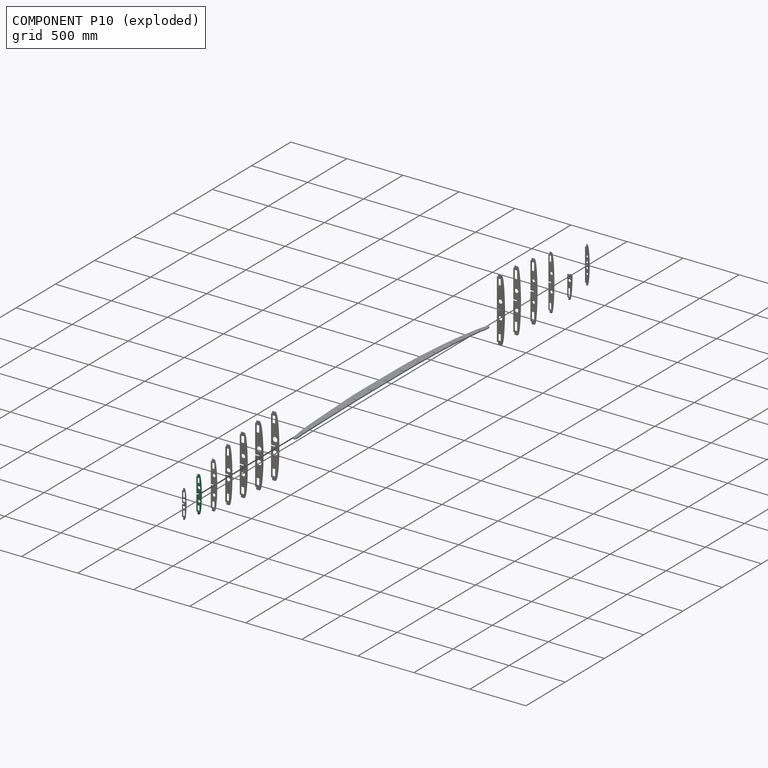
[diagram: component P10 — exploded]
COMPONENT P10 — recipe-attached (CADFS 00405795, mesh-verified: the recipe's output STEP matches this component's geometry to below the mesh-comparison resolution (tessellation chordal tolerance ~0.491 mm)).
Held by: FASTENED mate "Fastened 4" to P8.
Construction recipe (FeatureScript — the CAD program that rebuilds this solid; sketch coordinates are in the units given by the * unit suffixes, e.g. mm):

FeatureScript 1511;
import(path : "onshape/std/geometry.fs", version : "1511.0");
import(path : "onshape/std/common.fs", version : "1511.0");
const mm = millimeter;
const VERTEX = EntityType.VERTEX;
const EDGE = EntityType.EDGE;
const FACE = EntityType.FACE;
const BODY = EntityType.BODY;
function v(x, y){return vector(x, y);}
function OD(order){return orderDisambiguation(order);}
function OSD(set){return originalSetDisambiguation(set);}
function TD(topology){return topologyDisambiguation(topology);}
function TDD(query){return trueDependencyDisambiguation(query);}
function sQuery(a, b, c) {return sketchEntityQuery(a, b, c);}

annotation { "Feature Type Name" : "Feature", "Feature Type Description" : "" }
export const myFeature = defineFeature(function(context is Context, id is Id, definition is map)
    precondition{}
    {
        {
            var Q0;
            Q0=qCreatedBy(makeId("Front.planeOp"),FACE);
            var sketch = newSketch(context, id + "F0", { "sketchPlane" : qUnion([Q0])});
            skLineSegment(sketch, "E0.bottom", {"start": v(469.38, 222.22) * mm, "end": v(434.38, 222.22) * mm});
            skLineSegment(sketch, "E0.top", {"start": v(469.38, 60.22) * mm, "end": v(424.38, 60.22) * mm});
            skLineSegment(sketch, "E0.left", {"start": v(469.38, 222.22) * mm, "end": v(469.38, 60.22) * mm});
            skFitSpline(sketch, "E1", {"points": [v(449.38, 222.22) * mm, v(469.38, 60.22) * mm], "startDerivative": vector(60, -14.58) * mm, "endDerivative": vector(-0.42, 27.38) * mm});
            skLineSegment(sketch, "E2.bottom", {"start": v(451.29, 192.47) * mm, "end": v(432.7, 192.47) * mm});
            skLineSegment(sketch, "E2.top", {"start": v(451.29, 149.46) * mm, "end": v(432.7, 149.46) * mm});
            skLineSegment(sketch, "E2.left", {"start": v(451.29, 192.47) * mm, "end": v(451.29, 149.46) * mm});
            skLineSegment(sketch, "E2.right", {"start": v(432.7, 192.47) * mm, "end": v(432.7, 149.46) * mm});
            skCircle(sketch, "E3", {"center": v(446.91, 113.87) * mm, "radius": 13.03 * mm});
            skLineSegment(sketch, "E4.MirrorCS", {"start": v(451.29, -72.03) * mm, "end": v(451.29, -29.03) * mm});
            skLineSegment(sketch, "E5.MirrorCS", {"start": v(469.38, -101.78) * mm, "end": v(434.38, -101.78) * mm});
            skLineSegment(sketch, "E6.MirrorCS", {"start": v(469.38, -101.78) * mm, "end": v(469.38, 60.22) * mm});
            skFitSpline(sketch, "E7.MirrorCS", {"points": [v(449.38, -101.78) * mm, v(469.38, 60.22) * mm], "startDerivative": vector(60, 14.58) * mm, "endDerivative": vector(-0.42, -27.38) * mm});
            skLineSegment(sketch, "E8.MirrorCS", {"start": v(432.7, -72.03) * mm, "end": v(432.7, -29.03) * mm});
            skLineSegment(sketch, "E9.MirrorCS", {"start": v(451.29, -72.03) * mm, "end": v(432.7, -72.03) * mm});
            skLineSegment(sketch, "E10.MirrorCS", {"start": v(451.29, -29.03) * mm, "end": v(432.7, -29.03) * mm});
            skCircle(sketch, "E11.MirrorC", {"center": v(446.91, 6.57) * mm, "radius": 13.03 * mm});
            skLineSegment(sketch, "E12", {"start": v(446.88, 60.22) * mm, "end": v(446.88, 55.22) * mm});
            skLineSegment(sketch, "E13", {"start": v(446.88, 60.22) * mm, "end": v(446.88, 65.22) * mm});
            skLineSegment(sketch, "E14", {"start": v(446.88, 65.22) * mm, "end": v(424.38, 65.22) * mm});
            skLineSegment(sketch, "E15", {"start": v(446.88, 55.22) * mm, "end": v(424.38, 55.22) * mm});
            skLineSegment(sketch, "E16", {"start": v(434.38, 222.22) * mm, "end": v(434.38, 202.22) * mm});
            skLineSegment(sketch, "E17", {"start": v(434.38, 202.22) * mm, "end": v(424.38, 202.22) * mm});
            skLineSegment(sketch, "E18", {"start": v(424.38, 202.22) * mm, "end": v(424.38, 60.22) * mm});
            skLineSegment(sketch, "E19.MirrorCS", {"start": v(434.38, -101.78) * mm, "end": v(434.38, -81.78) * mm});
            skLineSegment(sketch, "E20.MirrorCS", {"start": v(434.38, -81.78) * mm, "end": v(424.38, -81.78) * mm});
            skLineSegment(sketch, "E21", {"start": v(424.38, -81.78) * mm, "end": v(424.38, 60.22) * mm});
            skSolve(sketch);
        }
        {
            var Q0;
            Q0=makeQuery(id+"F0.imprint","IMPRINT",FACE,{"disambiguationData":[TD([[makeQuery(id+"F0.imprint","IMPRINT",EDGE,{"derivedFrom":sQuery(id+"F0.wireOp",EDGE,"E4.MirrorCS")}),-1.0]])]});
            var Q1;
            Q1=makeQuery(id+"F0.imprint","IMPRINT",FACE,{"disambiguationData":[TD([[makeQuery(id+"F0.imprint","IMPRINT",EDGE,{"derivedFrom":sQuery(id+"F0.wireOp",EDGE,"E2.bottom")}),-1.0]])]});
            extrude(context, id + "F1", {"entities" : qUnion([Q0, Q1]), "depth" : 6 * mm});
        }
    });
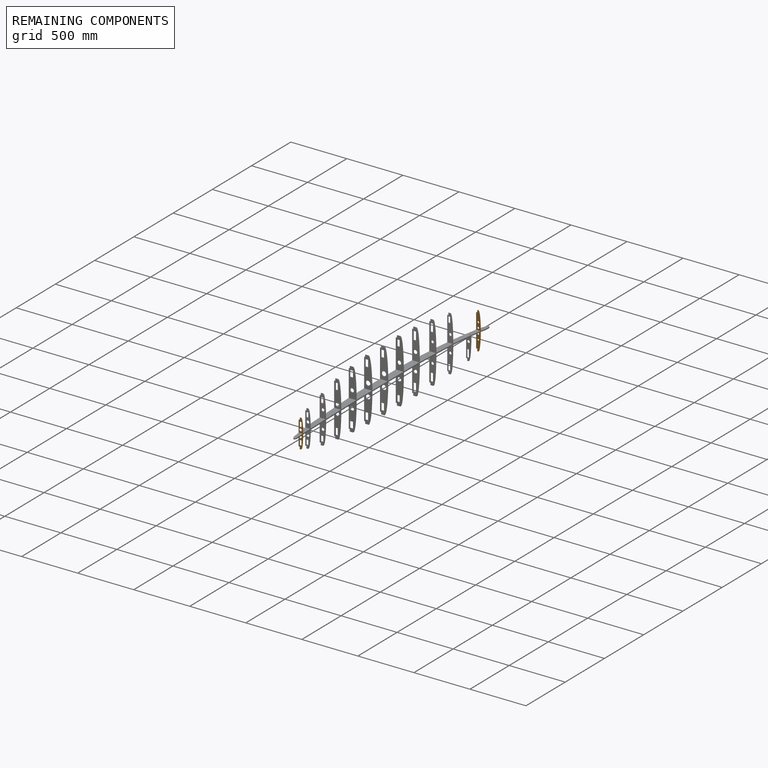
[diagram: remaining components — assembled]
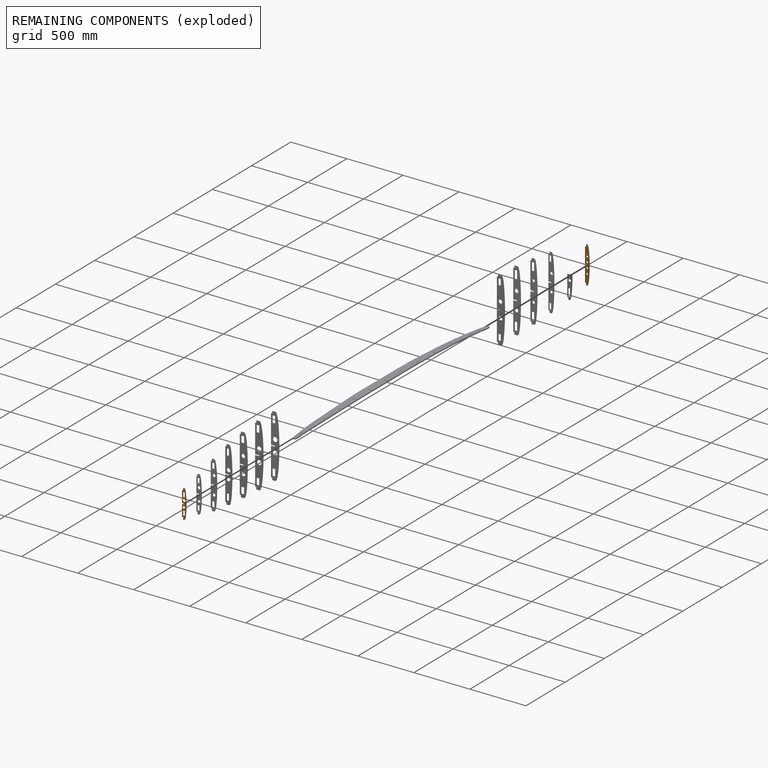
[diagram: remaining components — exploded]
REMAINING COMPONENTS (grouped) — the 2 components below fall outside the per-component tour by the significance rule stated above; both spotlight views highlight the whole group.
  P5: bounding box 330.0 x 38.0 x 6.0 mm, volume 57801 mm^3. Held by: FASTENED mate "Fastened 1" to P8.
  P9: bounding box 254.0 x 36.1 x 6.0 mm, volume 30048 mm^3. Held by: FASTENED mate "Fastened 2" to P8.
PROVENANCE & LICENSES
Assembly (occurrences, transforms, mates, per-part STEP geometry): AutoMate dataset, Zenodo record 7776208, CC0.
Construction recipes: CADFS (HuggingFace VladPyatov/CADFS, CC-BY-4.0, layered over the ABC dataset), FeatureScript reconstruction programs keyed by ABC model id.
Join: ABC meta listings map ABC model id -> Onshape documentId; within a shared document, parts are matched by geometric signature (bounding-box dims + volume at 0.1% relative tolerance, exact B-rep face/solid counts).
Verification: 4 of this assembly's 14 components carry a recipe attachment, and every attachment is mesh-verified: the CADFS STEP and the AutoMate member STEP were compared as meshes in their shared local frame (symmetric sampled-point-to-mesh distance); worst across the 4 attachments: below the mesh-comparison resolution (tessellation chordal tolerance ~0.742 mm) on a 495 mm part.
Renders: orthographic iso camera (az 35 / el 25); the floor grid conveys scale (grid pitch printed in each image; no ruler). In the exploded view each component is displaced by its stored offset vector: the offsets alone carry the explosion direction (mate normal/axis signs are not orientation cues and do not encode it), and separation distances are assigned per mate-chain, not proportionally to assembly-order depth.
